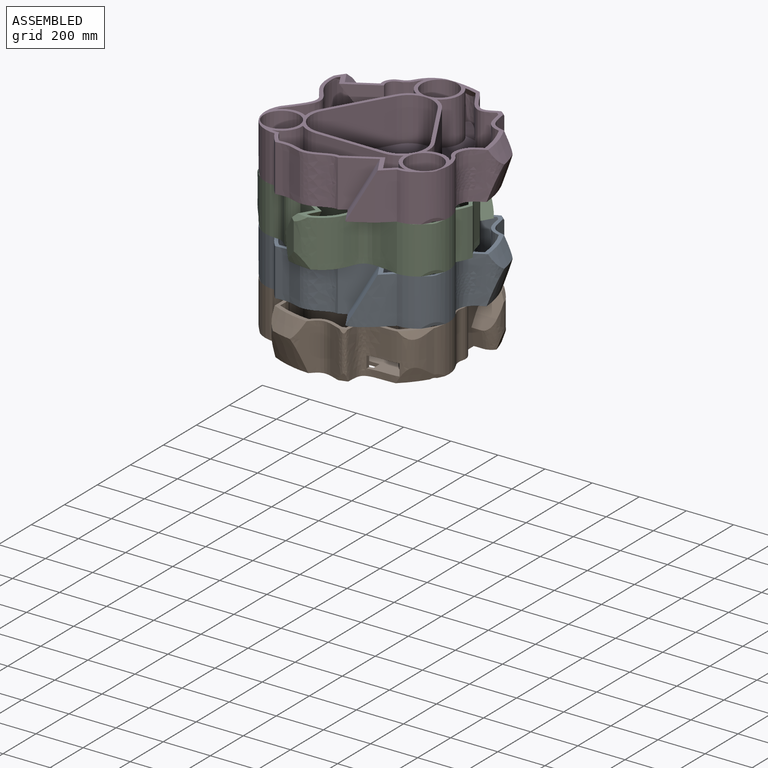
[diagram: assembled view]
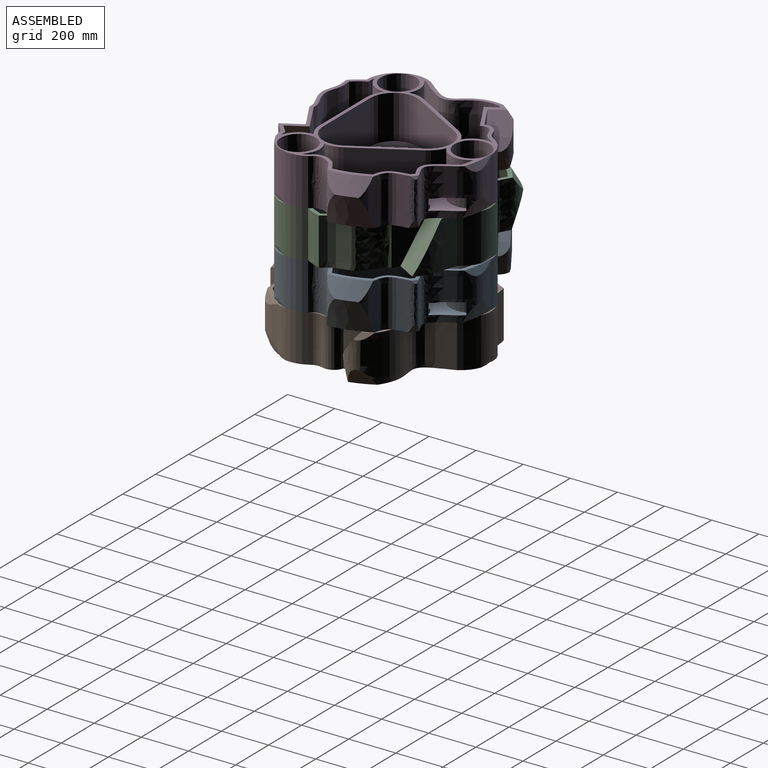
[diagram: assembled view, second angle]
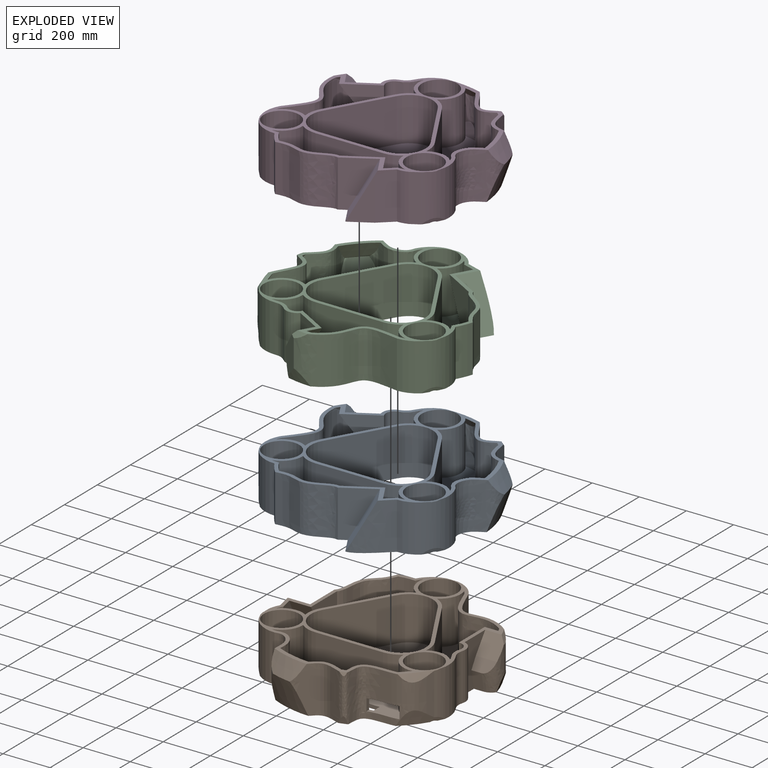
[diagram: exploded view]
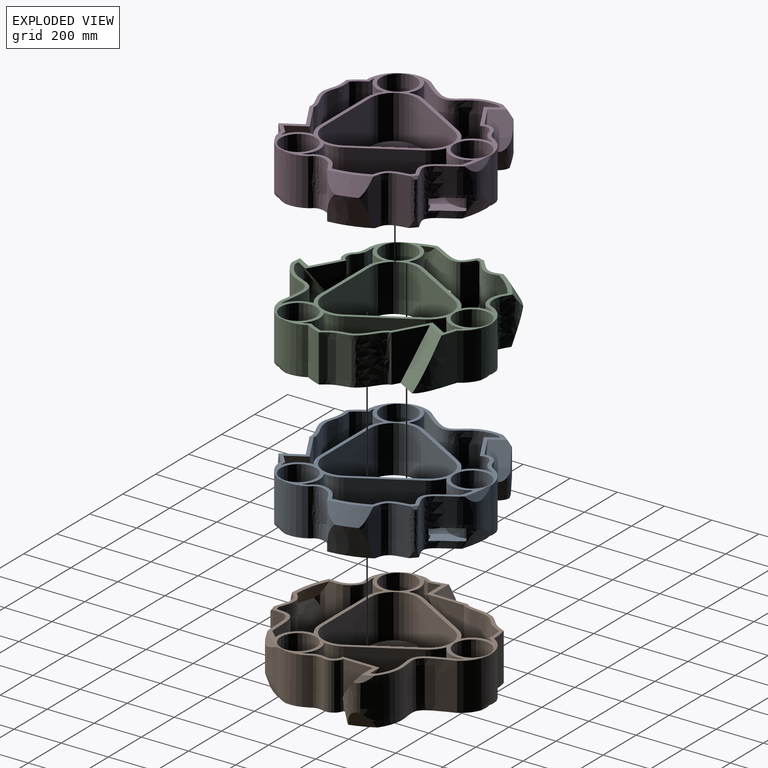
[diagram: exploded view, second angle]
ASSEMBLY  parts=4 mates=6
PART A: 99 faces, bbox 876x925.2x240.4 mm
  f0: extruded ~300.42x204.44mm, area 78769.9mm2, adj f1,f52,f53,f95,f97,f98
  f1: plane 176.41x74.61mm, normal (1,0,0), area 7750.6mm2, adj f0,f2,f50,f51,f52,f98
  f2: bspline ~130.28x96.29mm, area 4856.4mm2, adj f1,f3,f50,f52,f53
  f3: plane 76.99x43.45mm, normal (0,-0.98,-0.19), area 3344.1mm2, adj f2,f4,f50,f53
  f4: plane 200x124.95mm, normal (1,0,0), area 13694.9mm2, adj f3,f5,f50,f51,f53,f97
  f5: cylinder r=50mm len=200mm, axis (0,0,-1), area 15782.8mm2, adj f4,f6,f53,f97
  f6: extruded ~200x56.99mm, area 11951.3mm2, adj f5,f7,f53,f97
  f7: cylinder r=130mm len=200mm, axis (0,0,-1), area 26744.1mm2, adj f6,f8,f9,f11,f53,f97
  f8: cone r=391.14mm half-angle=30deg, axis (0,0,-1), area 2963.1mm2, adj f7,f11,f97
  f9: cone r=467.38mm half-angle=18.2deg, axis (0,0,1), area 6941.4mm2, adj f7,f10,f11,f53
  f10: cylinder r=75mm len=200mm, axis (0,0,-1), area 94247.8mm2, adj f9,f53,f97
  f11: extruded ~440.09x247.45mm, area 95575.9mm2, adj f7,f8,f9,f12,f13,f24,f25,f26
  f12: cone r=391.14mm half-angle=30deg, axis (0,0,-1), area 0mm2, adj f11,f97
  f13: cone r=391.14mm half-angle=30deg, axis (0,0,-1), area 10278.1mm2, adj f11,f14,f24,f97
  f14: extruded ~200x164.44mm, area 37722mm2, adj f13,f15,f24,f53,f97
  f15: cylinder r=130mm len=200mm, axis (0,0,-1), area 54454.3mm2, adj f14,f16,f21,f22,f53,f97
  f16: extruded ~200x178.94mm, area 25849.1mm2, adj f15,f17,f53,f97
  f17: plane 214.16x127.19mm, normal (0,0.87,0.49), area 23080.7mm2, adj f16,f18,f53,f97
  f18: plane 200x147.7mm, normal (-1,0,0), area 18238.3mm2, adj f17,f19,f53,f97
  f19: extruded ~228.19x200mm, area 52186mm2, adj f18,f20,f53,f97
  f20: cylinder r=300mm len=200mm, axis (0,0,-1), area 14047.1mm2, adj f19,f53,f95,f97
  f21: cone r=391.14mm half-angle=30deg, axis (0,0,-1), area 0mm2, adj f15,f97
  f22: cone r=467.38mm half-angle=18.2deg, axis (0,0,1), area 1222.1mm2, adj f15,f23,f53
  f23: cylinder r=75mm len=200mm, axis (0,0,-1), area 94247.8mm2, adj f22,f53,f97
  f24: cone r=467.38mm half-angle=18.2deg, axis (0,0,1), area 18534.6mm2, adj f11,f13,f14,f53
  f25: cone r=467.38mm half-angle=18.2deg, axis (0,0,1), area 848.1mm2, adj f11,f53
  f26: plane 50.27x15.9mm, normal (1,0,0), area 799.3mm2, adj f11,f27,f47,f49
  f27: extruded ~218.83x185mm, area 44645.5mm2, adj f26,f28,f37,f38,f39,f40,f41,f46
  f28: cylinder r=90mm len=185mm, axis (0,0,-1), area 32758.9mm2, adj f27,f29,f37,f41,f46,f97
  f29: cylinder r=115mm len=185mm, axis (0,0,-1), area 13975.5mm2, adj f28,f30,f41,f97
  f30: plane 285.79x185mm, normal (0,-1,0), area 52870.9mm2, adj f29,f31,f41,f97
  f31: cylinder r=115mm len=185mm, axis (0,0,-1), area 13975.5mm2, adj f30,f32,f41,f97
  f32: cylinder r=90mm len=185mm, axis (0,0,-1), area 22628.7mm2, adj f31,f33,f41,f97
  f33: cylinder r=115mm len=185mm, axis (0,0,-1), area 4001.1mm2, adj f32,f34,f41,f97
  f34: extruded ~185x163.5mm, area 37157.6mm2, adj f33,f35,f36,f41,f97
  f35: cone r=378.15mm half-angle=30deg, axis (0,0,-1), area 9632.8mm2, adj f34,f36,f39,f97
  f36: cone r=453.13mm half-angle=18.2deg, axis (0,0,1), area 14417.4mm2, adj f34,f35,f39,f41
  f37: cone r=378.15mm half-angle=30deg, axis (0,0,-1), area 860.6mm2, adj f27,f28,f97
  f38: cone r=378.15mm half-angle=30deg, axis (0,0,-1), area 158.9mm2, adj f27,f39,f97
  f39: extruded ~187.89x185mm, area 35004mm2, adj f27,f35,f36,f38,f40,f41,f97
  f40: cone r=453.13mm half-angle=18.2deg, axis (0,0,1), area 145.9mm2, adj f27,f39,f41
  f41: plane 619.7x257.74mm, normal (0,0,1), area 76031.7mm2, adj f27,f28,f29,f30,f31,f32,f33,f34
  f42: plane 39.4x15mm, normal (1,0,0), area 591mm2, adj f41,f43,f45,f53
  f43: plane 96.47x15mm, normal (0,1,0), area 1447mm2, adj f41,f42,f44,f53
  f44: plane 39.4x15mm, normal (-1,0,0), area 591mm2, adj f41,f43,f45,f53
  f45: plane 96.47x15mm, normal (0,-1,0), area 1447mm2, adj f41,f42,f44,f53
  f46: cone r=453.13mm half-angle=18.2deg, axis (0,0,1), area 2571.4mm2, adj f27,f28,f41,f48,f49
  f47: plane 145.92x38.46mm, normal (0,0,-1), area 1991.4mm2, adj f11,f26,f27,f48
  f48: plane 50.29x20.01mm, normal (-1,0,0), area 800.3mm2, adj f11,f27,f46,f47,f49
  f49: plane 143.32x40.38mm, normal (0,0,1), area 2005.3mm2, adj f11,f26,f27,f46,f48
  f50: plane 96x56.19mm, normal (0,-0.86,0.51), area 4038.2mm2, adj f1,f2,f3,f4,f51
  f51: plane 85.21x78.02mm, normal (0,-0.81,0.59), area 8048mm2, adj f1,f4,f50,f97,f98
  f52: cone r=467.38mm half-angle=18.2deg, axis (0,0,1), area 3528.1mm2, adj f0,f1,f2,f53
  f53: plane 853.3x808.85mm, normal (0,0,-1), area 254977mm2, adj f0,f2,f3,f4,f5,f6,f7,f9
  f54: cylinder r=75mm len=200mm, axis (0,0,-1), area 94247.8mm2, adj f53,f55,f97
  f55: cone r=467.38mm half-angle=18.2deg, axis (0,0,1), area 1222.1mm2, adj f53,f54,f95
  f56: cylinder r=100mm len=200mm, axis (0,0,-1), area 41887.9mm2, adj f53,f57,f61,f97
  f57: plane 247.5x200mm, normal (0.87,-0.5,0), area 57157.7mm2, adj f53,f56,f58,f97
  f58: cylinder r=100mm len=200mm, axis (0,0,-1), area 41887.9mm2, adj f53,f57,f59,f97
  f59: plane 247.5x200mm, normal (-0.87,-0.5,0), area 57157.7mm2, adj f53,f58,f60,f97
  f60: cylinder r=100mm len=200mm, axis (0,0,-1), area 41887.9mm2, adj f53,f59,f61,f97
  f61: plane 285.79x200mm, normal (0,1,0), area 57157.7mm2, adj f53,f56,f60,f97
  f62: cylinder r=49.99mm len=99.99mm, axis (0,0,-1), area 4711.8mm2, adj f53,f63
  f63: plane 517.96x363.56mm, normal (0,0,1), area 50419mm2, adj f62,f64,f65,f66,f67,f68,f69,f70
  f64: cylinder r=115mm len=185mm, axis (0,0,-1), area 13975.5mm2, adj f63,f65,f75,f97
  f65: plane 247.5x185mm, normal (-0.87,0.5,0), area 52870.9mm2, adj f63,f64,f66,f97
  f66: cylinder r=115mm len=185mm, axis (0,0,-1), area 13975.5mm2, adj f63,f65,f67,f97
  f67: cylinder r=90mm len=185mm, axis (0,0,-1), area 22628.7mm2, adj f63,f66,f68,f97
  f68: cylinder r=115mm len=185mm, axis (0,0,-1), area 5334mm2, adj f63,f67,f69,f97
  f69: extruded ~185x155.88mm, area 20138.4mm2, adj f63,f68,f70,f97
  f70: plane 195.29x114.84mm, normal (0,-0.87,-0.49), area 21127mm2, adj f63,f69,f71,f97
  f71: plane 185x159.07mm, normal (1,0,0), area 19757.9mm2, adj f63,f70,f72,f97
  f72: extruded ~221.08x185mm, area 46738.1mm2, adj f63,f71,f73,f97
  f73: cylinder r=285mm len=185mm, axis (0,0,-1), area 12636.8mm2, adj f63,f72,f74,f97
  f74: cylinder r=115mm len=185mm, axis (0,0,-1), area 5881.2mm2, adj f63,f73,f75,f97
  f75: cylinder r=90mm len=185mm, axis (0,0,-1), area 22628.7mm2, adj f63,f64,f74,f97
  f76: cylinder r=29.48mm len=58.95mm, axis (0,0,-1), area 2778.1mm2, adj f53,f77
  f77: plane 499.08x362.19mm, normal (0,0,1), area 54571.8mm2, adj f76,f78,f79,f80,f81,f82,f83,f87
  f78: cylinder r=115mm len=185mm, axis (0,0,-1), area 13975.5mm2, adj f77,f79,f94,f97
  f79: plane 247.5x185mm, normal (0.87,0.5,0), area 52870.9mm2, adj f77,f78,f80,f97
  f80: cylinder r=115mm len=185mm, axis (0,0,-1), area 13975.5mm2, adj f77,f79,f81,f97
  f81: cylinder r=90mm len=185mm, axis (0,0,-1), area 22628.7mm2, adj f77,f80,f82,f97
  f82: cylinder r=115mm len=185mm, axis (0,0,-1), area 4064.3mm2, adj f77,f81,f83,f97
  f83: extruded ~307.4x246.98mm, area 75763mm2, adj f77,f82,f84,f85,f86,f87,f88,f97
  f84: plane 103.23x50.74mm, normal (0,0.86,-0.51), area 3889.1mm2, adj f83,f86,f88,f89,f90
  f85: cone r=378.15mm half-angle=30deg, axis (0,0,-1), area 345.9mm2, adj f83,f86,f97
  f86: plane 95.27x87.92mm, normal (0,0.81,-0.59), area 9071.9mm2, adj f83,f84,f85,f90,f97
  f87: cone r=453.13mm half-angle=18.2deg, axis (0,0,1), area 1862.7mm2, adj f77,f83,f88
  f88: bspline ~114.01x70.49mm, area 3910.4mm2, adj f77,f83,f84,f87,f89
  f89: plane 59.26x58.45mm, normal (0,0.98,0.19), area 3498.9mm2, adj f77,f84,f88,f90
  f90: plane 185x157.09mm, normal (-1,0,0), area 18570.5mm2, adj f77,f84,f86,f89,f91,f97
  f91: cylinder r=35mm len=185mm, axis (0,0,-1), area 12323.1mm2, adj f77,f90,f92,f97
  f92: extruded ~185x68.32mm, area 13223.6mm2, adj f77,f91,f93,f97
  f93: cylinder r=115mm len=185mm, axis (0,0,-1), area 4281.7mm2, adj f77,f92,f94,f97
  f94: cylinder r=90mm len=185mm, axis (0,0,-1), area 22628.7mm2, adj f77,f78,f93,f97
  f95: cylinder r=130mm len=225.17mm, axis (0,0,-1), area 54454.3mm2, adj f0,f20,f53,f55,f96,f97
  f96: cone r=391.14mm half-angle=30deg, axis (0,0,-1), area 0mm2, adj f95,f97
  f97: plane 886.02x815.82mm, normal (0,0,1), area 76455.2mm2, adj f0,f4,f5,f6,f7,f8,f10,f11
  f98: cone r=391.14mm half-angle=30deg, axis (0,0,-1), area 938.3mm2, adj f0,f1,f51,f97
PART B: 104 faces, bbox 874.1x925.2x240.4 mm
  f0: extruded ~200x76.04mm, area 15435.8mm2, adj f1,f59,f101,f102,f103
  f1: plane 200.1x113.12mm, normal (0,0.87,0.49), area 22256mm2, adj f0,f2,f3,f59,f102,f103
  f2: extruded ~7.54x4.26mm, area 18.3mm2, adj f1,f102,f103
  f3: plane 200x147.7mm, normal (-1,0,0), area 18238.3mm2, adj f1,f4,f59,f102
  f4: extruded ~228.19x200mm, area 52186mm2, adj f3,f5,f59,f102
  f5: cylinder r=300mm len=200mm, axis (0,0,-1), area 14047.1mm2, adj f4,f6,f59,f102
  f6: cylinder r=130mm len=225.17mm, axis (0,0,-1), area 54454.3mm2, adj f5,f7,f56,f57,f59,f102
  f7: extruded ~308.51x261.45mm, area 84952.5mm2, adj f6,f8,f53,f54,f55,f59,f102
  f8: plane 94.01x78.36mm, normal (0,-0.81,0.59), area 8570.5mm2, adj f7,f9,f52,f53,f55,f59
  f9: plane 200x124.95mm, normal (1,0,0), area 13694.9mm2, adj f8,f10,f11,f52,f59,f102
  f10: plane 76.99x43.45mm, normal (0,-0.98,-0.19), area 3344.1mm2, adj f9,f52,f53,f102
  f11: cylinder r=50mm len=200mm, axis (0,0,-1), area 15782.8mm2, adj f9,f12,f59,f102
  f12: extruded ~200x56.99mm, area 11951.3mm2, adj f11,f13,f59,f102
  f13: cylinder r=130mm len=200mm, axis (0,0,-1), area 26744.1mm2, adj f12,f14,f15,f17,f59,f102
  f14: cone r=391.14mm half-angle=30deg, axis (0,0,-1), area 2963.1mm2, adj f13,f17,f59
  f15: cone r=467.38mm half-angle=18.2deg, axis (0,0,1), area 6941.4mm2, adj f13,f16,f17,f102
  f16: cylinder r=75mm len=200mm, axis (0,0,-1), area 94247.8mm2, adj f15,f59,f102
  f17: extruded ~440.09x247.45mm, area 95575.9mm2, adj f13,f14,f15,f18,f19,f26,f27,f28
  f18: cone r=391.14mm half-angle=30deg, axis (0,0,-1), area 0mm2, adj f17,f59
  f19: cone r=391.14mm half-angle=30deg, axis (0,0,-1), area 10278.1mm2, adj f17,f20,f26,f59
  f20: extruded ~200x164.44mm, area 37722mm2, adj f19,f21,f26,f59,f102
  f21: cylinder r=130mm len=200mm, axis (0,0,-1), area 35325.3mm2, adj f20,f22,f23,f25,f59,f102
  f22: cone r=391.14mm half-angle=30deg, axis (0,0,-1), area 0mm2, adj f21,f59
  f23: cone r=467.38mm half-angle=18.2deg, axis (0,0,1), area 1157mm2, adj f21,f24,f25,f102
  f24: cylinder r=75mm len=200mm, axis (0,0,-1), area 94247.8mm2, adj f23,f59,f102
  f25: plane 200x43.21mm, normal (-1,0,0), area 8641mm2, adj f21,f23,f59,f101,f102
  f26: cone r=467.38mm half-angle=18.2deg, axis (0,0,1), area 18534.6mm2, adj f17,f19,f20,f102
  f27: cone r=467.38mm half-angle=18.2deg, axis (0,0,1), area 848.1mm2, adj f17,f102
  f28: plane 50.27x15.9mm, normal (1,0,0), area 799.3mm2, adj f17,f29,f49,f51
  f29: extruded ~218.83x185mm, area 44645.5mm2, adj f28,f30,f39,f40,f41,f42,f43,f48
  f30: cylinder r=90mm len=185mm, axis (0,0,-1), area 32758.9mm2, adj f29,f31,f39,f43,f48,f59
  f31: cylinder r=115mm len=185mm, axis (0,0,-1), area 13975.5mm2, adj f30,f32,f43,f59
  f32: plane 285.79x185mm, normal (0,-1,0), area 52870.9mm2, adj f31,f33,f43,f59
  f33: cylinder r=115mm len=185mm, axis (0,0,-1), area 13975.5mm2, adj f32,f34,f43,f59
  f34: cylinder r=90mm len=185mm, axis (0,0,-1), area 22628.7mm2, adj f33,f35,f43,f59
  f35: cylinder r=115mm len=185mm, axis (0,0,-1), area 4001.1mm2, adj f34,f36,f43,f59
  f36: extruded ~185x163.5mm, area 37157.6mm2, adj f35,f37,f38,f43,f59
  f37: cone r=378.15mm half-angle=30deg, axis (0,0,-1), area 9632.8mm2, adj f36,f38,f41,f59
  f38: cone r=453.13mm half-angle=18.2deg, axis (0,0,1), area 14417.4mm2, adj f36,f37,f41,f43
  f39: cone r=378.15mm half-angle=30deg, axis (0,0,-1), area 860.6mm2, adj f29,f30,f59
  f40: cone r=378.15mm half-angle=30deg, axis (0,0,-1), area 158.9mm2, adj f29,f41,f59
  f41: extruded ~187.89x185mm, area 35004mm2, adj f29,f37,f38,f40,f42,f43,f59
  f42: cone r=453.13mm half-angle=18.2deg, axis (0,0,1), area 145.9mm2, adj f29,f41,f43
  f43: plane 619.7x257.74mm, normal (0,0,1), area 76031.7mm2, adj f29,f30,f31,f32,f33,f34,f35,f36
  f44: plane 39.4x15mm, normal (1,0,0), area 591mm2, adj f43,f45,f47,f102
  f45: plane 96.47x15mm, normal (0,1,0), area 1447mm2, adj f43,f44,f46,f102
  f46: plane 39.4x15mm, normal (-1,0,0), area 591mm2, adj f43,f45,f47,f102
  f47: plane 96.47x15mm, normal (0,-1,0), area 1447mm2, adj f43,f44,f46,f102
  f48: cone r=453.13mm half-angle=18.2deg, axis (0,0,1), area 2571.4mm2, adj f29,f30,f43,f50,f51
  f49: plane 145.92x38.46mm, normal (0,0,-1), area 1991.4mm2, adj f17,f28,f29,f50
  f50: plane 50.29x20.01mm, normal (-1,0,0), area 800.3mm2, adj f17,f29,f48,f49,f51
  f51: plane 143.32x40.38mm, normal (0,0,1), area 2005.3mm2, adj f17,f28,f29,f48,f50
  f52: plane 89.58x45.2mm, normal (0,-0.86,0.51), area 4081.7mm2, adj f8,f9,f10,f53
  f53: bspline ~145.59x99.35mm, area 6658.6mm2, adj f7,f8,f10,f52,f54,f102
  f54: cone r=467.38mm half-angle=18.2deg, axis (0,0,1), area 3057.5mm2, adj f7,f53,f102
  f55: cone r=391.14mm half-angle=30deg, axis (0,0,-1), area 704.5mm2, adj f7,f8,f59
  f56: cone r=391.14mm half-angle=30deg, axis (0,0,-1), area 0mm2, adj f6,f59
  f57: cone r=467.38mm half-angle=18.2deg, axis (0,0,1), area 1222.1mm2, adj f6,f58,f102
  f58: cylinder r=75mm len=200mm, axis (0,0,-1), area 94247.8mm2, adj f57,f59,f102
  f59: plane 886.02x814.01mm, normal (0,0,1), area 76403.1mm2, adj f0,f1,f3,f4,f5,f6,f7,f8
  f60: cylinder r=100mm len=185mm, axis (0,0,-1), area 38746.3mm2, adj f59,f61,f63,f67
  f61: plane 485.79x447.5mm, normal (0,0,1), area 141350.4mm2, adj f60,f62,f63,f64,f65,f66,f67
  f62: cylinder r=66.29mm len=132.57mm, axis (0,0,-1), area 4184.1mm2, adj f61,f63,f102
  f63: plane 247.5x200mm, normal (-0.87,-0.5,0), area 54583.4mm2, adj f59,f60,f61,f62,f64,f102
  f64: cylinder r=100mm len=185mm, axis (0,0,-1), area 38746.3mm2, adj f59,f61,f63,f65
  f65: plane 247.5x185mm, normal (0.87,-0.5,0), area 52870.9mm2, adj f59,f61,f64,f66
  f66: cylinder r=100mm len=185mm, axis (0,0,-1), area 38746.3mm2, adj f59,f61,f65,f67
  f67: plane 285.79x185mm, normal (0,1,0), area 52870.9mm2, adj f59,f60,f61,f66
  f68: cylinder r=115mm len=185mm, axis (0,0,-1), area 13975.5mm2, adj f59,f69,f71,f81
  f69: plane 517.96x363.56mm, normal (0,0,1), area 50419mm2, adj f68,f70,f71,f72,f73,f74,f75,f76
  f70: cylinder r=49.99mm len=99.99mm, axis (0,0,-1), area 4711.8mm2, adj f69,f102
  f71: plane 247.5x185mm, normal (-0.87,0.5,0), area 52870.9mm2, adj f59,f68,f69,f72
  f72: cylinder r=115mm len=185mm, axis (0,0,-1), area 13975.5mm2, adj f59,f69,f71,f73
  f73: cylinder r=90mm len=185mm, axis (0,0,-1), area 22628.7mm2, adj f59,f69,f72,f74
  f74: cylinder r=115mm len=185mm, axis (0,0,-1), area 5881.2mm2, adj f59,f69,f73,f75
  f75: cylinder r=285mm len=185mm, axis (0,0,-1), area 12636.8mm2, adj f59,f69,f74,f76
  f76: extruded ~221.08x185mm, area 46738.1mm2, adj f59,f69,f75,f77
  f77: plane 185x159.07mm, normal (1,0,0), area 19757.9mm2, adj f59,f69,f76,f78
  f78: plane 195.29x114.84mm, normal (0,-0.87,-0.49), area 21127mm2, adj f59,f69,f77,f79
  f79: extruded ~185x155.88mm, area 20138.4mm2, adj f59,f69,f78,f80
  f80: cylinder r=115mm len=185mm, axis (0,0,-1), area 5334mm2, adj f59,f69,f79,f81
  f81: cylinder r=90mm len=185mm, axis (0,0,-1), area 22628.7mm2, adj f59,f68,f69,f80
  f82: cylinder r=115mm len=185mm, axis (0,0,-1), area 4281.7mm2, adj f59,f83,f89,f100
  f83: plane 499.08x362.19mm, normal (0,0,1), area 54571.8mm2, adj f82,f84,f85,f87,f88,f89,f90,f91
  f84: cone r=453.13mm half-angle=18.2deg, axis (0,0,1), area 1862.7mm2, adj f83,f85,f94
  f85: bspline ~114.01x70.49mm, area 3910.4mm2, adj f83,f84,f86,f87,f94
  f86: plane 103.23x50.74mm, normal (0,0.86,-0.51), area 3889.1mm2, adj f85,f87,f91,f92,f94
  f87: plane 59.26x58.45mm, normal (0,0.98,0.19), area 3498.9mm2, adj f83,f85,f86,f91
  f88: cylinder r=29.48mm len=58.95mm, axis (0,0,-1), area 2778.1mm2, adj f83,f102
  f89: extruded ~185x68.32mm, area 13223.6mm2, adj f59,f82,f83,f90
  f90: cylinder r=35mm len=185mm, axis (0,0,-1), area 12323.1mm2, adj f59,f83,f89,f91
  f91: plane 185x157.09mm, normal (-1,0,0), area 18570.5mm2, adj f59,f83,f86,f87,f90,f92
  f92: plane 95.27x87.92mm, normal (0,0.81,-0.59), area 9071.9mm2, adj f59,f86,f91,f93,f94
  f93: cone r=378.15mm half-angle=30deg, axis (0,0,-1), area 345.9mm2, adj f59,f92,f94
  f94: extruded ~307.4x246.98mm, area 75763mm2, adj f59,f83,f84,f85,f86,f92,f93,f95
  f95: cylinder r=115mm len=185mm, axis (0,0,-1), area 4064.3mm2, adj f59,f83,f94,f96
  f96: cylinder r=90mm len=185mm, axis (0,0,-1), area 22628.7mm2, adj f59,f83,f95,f97
  f97: cylinder r=115mm len=185mm, axis (0,0,-1), area 13975.5mm2, adj f59,f83,f96,f98
  f98: plane 247.5x185mm, normal (0.87,0.5,0), area 52870.9mm2, adj f59,f83,f97,f99
  f99: cylinder r=115mm len=185mm, axis (0,0,-1), area 13975.5mm2, adj f59,f83,f98,f100
  f100: cylinder r=90mm len=185mm, axis (0,0,-1), area 22628.7mm2, adj f59,f82,f83,f99
  f101: cylinder r=130mm len=200mm, axis (0,0,-1), area 9272.7mm2, adj f0,f25,f59,f102
  f102: plane 853.3x801.59mm, normal (0,0,-1), area 395869.6mm2, adj f0,f1,f2,f3,f4,f5,f6,f7
  f103: plane 182.08x98.64mm, normal (-1,0,0), area 9351.8mm2, adj f0,f1,f2,f102
PART C: same geometry as A
PART D: same geometry as B
PLACE A rot(axis=(0,0,1),120deg) t=(-65.47,47.93,189.85)mm
PLACE B t=(-65.47,47.93,-10.15)mm fixed
PLACE C rot(axis=(0,0,-1),120deg) t=(-65.47,47.93,389.85)mm
PLACE D rot(axis=(0,0,1),120deg) t=(-65.47,47.93,589.85)mm
MATE cylindrical D.f58 <-> C.f10  axis (0,0,-1) through (-368.58,-127.07,789.85)mm
MATE revolute A.f23 <-> C.f54  axis (0,0,1) through (237.64,-127.07,389.85)mm
MATE cylindrical C.f23 <-> A.f10  axis (0,0,-1) through (-65.47,397.93,589.85)mm
MATE revolute A.f23 <-> B.f16  axis (0,0,-1) through (237.64,-127.07,189.85)mm
MATE cylindrical A.f10 <-> B.f58  axis (0,0,1) through (-65.47,397.93,389.85)mm
MATE revolute C.f23 <-> D.f16  axis (0,0,1) through (-65.47,397.93,589.85)mm
